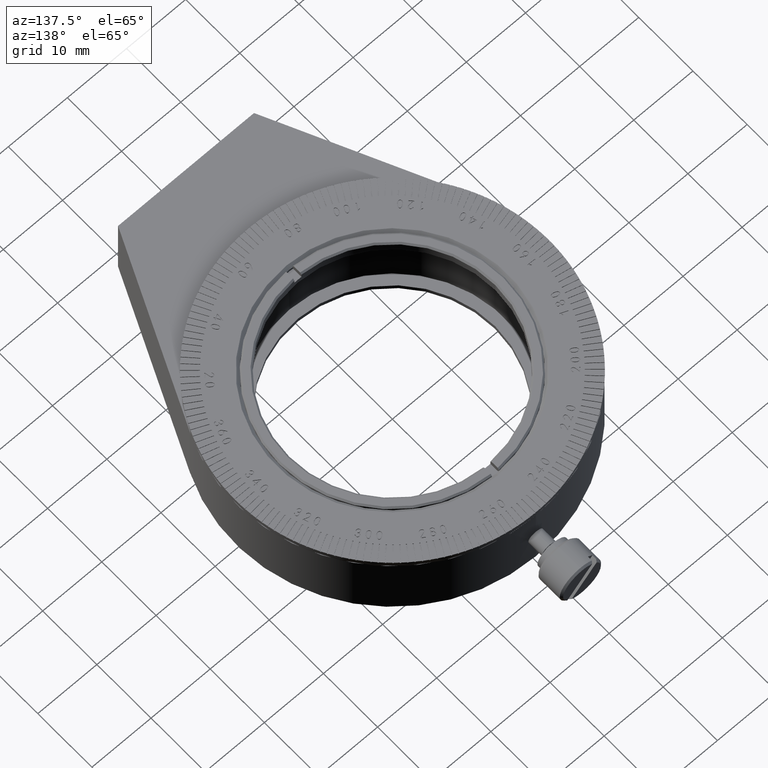
[diagram: clean part render]
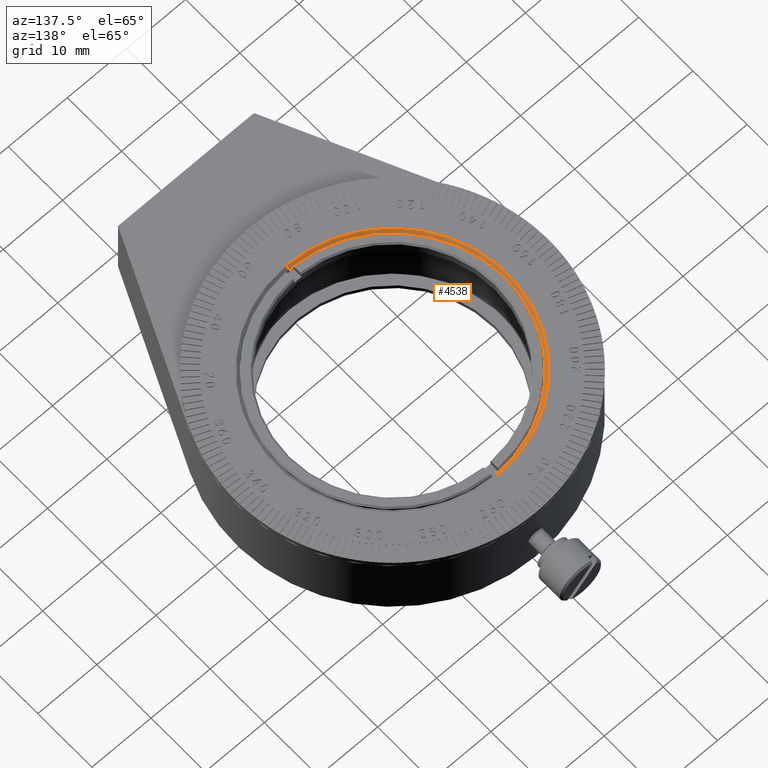
[diagram: same view with one face highlighted and labeled with its STEP entity id]
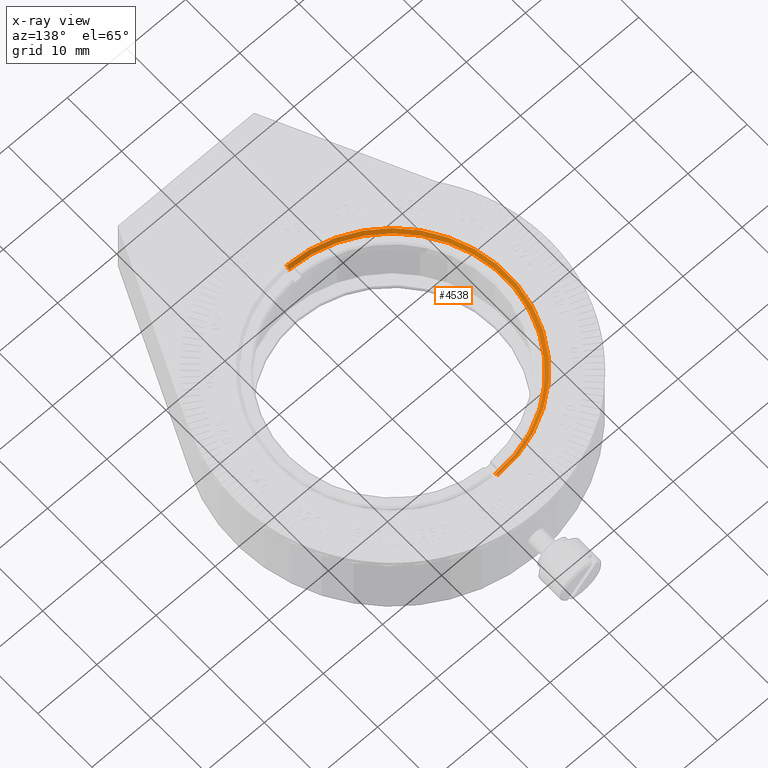
[diagram: x-ray of the same camera — body ghosted, the highlighted face saturated]
A machine part, auxiliary view. The second image highlights one B-rep face of the part: STEP entity #4538.
The next image is the same camera in x-ray: the body ghosted, the highlighted face saturated — about 0% of this face is hidden behind the body in this view.
In plain terms, the highlighted conical surface has half-angle 45 deg.
Its self-contained STEP definition (entity closure, byte-faithful):
#590 = EDGE_CURVE ( 'NONE', #22098, #11931, #48425, .T. ) ;
#831 = DIRECTION ( 'NONE',  ( 0.000000000000000000, -1.000000000000000000, 8.873265861773942406E-17 ) ) ;
#836 = VECTOR ( 'NONE', #46918, 1000.000000000000000 ) ;
#1762 = CARTESIAN_POINT ( 'NONE',  ( 3.028128947738332978E-15, 19.05000000000000426, 12.49999999999998757 ) ) ;
#3082 = DIRECTION ( 'NONE',  ( 0.000000000000000000, -1.000000000000000000, 8.873265861773942406E-17 ) ) ;
#4538 = ADVANCED_FACE ( 'NONE', ( #7821 ), #25960, .F. ) ;
#4668 = EDGE_CURVE ( 'NONE', #11294, #22098, #26980, .T. ) ;
#5459 = EDGE_CURVE ( 'NONE', #11294, #16571, #46296, .T. ) ;
#5872 = DIRECTION ( 'NONE',  ( -4.208420278381578421E-17, -7.811788899748226735E-17, -1.000000000000000000 ) ) ;
#7821 = FACE_OUTER_BOUND ( 'NONE', #36184, .T. ) ;
#7839 = AXIS2_PLACEMENT_3D ( 'NONE', #29827, #50326, #26035 ) ;
#7885 = CIRCLE ( 'NONE', #40085, 19.55000000000001492 ) ;
#8447 = CARTESIAN_POINT ( 'NONE',  ( 3.261546230321480742E-15, 19.55000000000001492, 13.00000000000000178 ) ) ;
#11294 = VERTEX_POINT ( 'NONE', #1762 ) ;
#11931 = VERTEX_POINT ( 'NONE', #38910 ) ;
#16571 = VERTEX_POINT ( 'NONE', #33635 ) ;
#19456 = CARTESIAN_POINT ( 'NONE',  ( 8.673617379884035472E-16, 0.000000000000000000, 13.00000000000000355 ) ) ;
#20291 = VECTOR ( 'NONE', #54388, 1000.000000000000000 ) ;
#20629 = EDGE_CURVE ( 'NONE', #11931, #16571, #7885, .T. ) ;
#22098 = VERTEX_POINT ( 'NONE', #41122 ) ;
#22955 = AXIS2_PLACEMENT_3D ( 'NONE', #27062, #46288, #3082 ) ;
#25960 = CONICAL_SURFACE ( 'NONE', #22955, 19.55000000000001492, 0.7853981633974447263 ) ;
#26035 = DIRECTION ( 'NONE',  ( -0.4742808728983839983, -0.8803735875199499850, 9.106159978880874930E-17 ) ) ;
#26980 = CIRCLE ( 'NONE', #7839, 19.05000000000000426 ) ;
#27062 = CARTESIAN_POINT ( 'NONE',  ( 8.673617379884035472E-16, 0.000000000000000000, 13.00000000000000355 ) ) ;
#29827 = CARTESIAN_POINT ( 'NONE',  ( 6.951767953626228640E-16, -9.757941448684247744E-16, 12.49999999999998934 ) ) ;
#30115 = CARTESIAN_POINT ( 'NONE',  ( 8.673617379884035472E-16, -19.55000000000001492, 13.00000000000000533 ) ) ;
#33635 = CARTESIAN_POINT ( 'NONE',  ( 3.261546230321480742E-15, 19.55000000000001492, 13.00000000000000178 ) ) ;
#36184 = EDGE_LOOP ( 'NONE', ( #49785, #49143, #50430, #39294 ) ) ;
#38910 = CARTESIAN_POINT ( 'NONE',  ( 8.673617379884035472E-16, -19.55000000000001492, 13.00000000000000533 ) ) ;
#39294 = ORIENTED_EDGE ( 'NONE', *, *, #590, .F. ) ;
#40085 = AXIS2_PLACEMENT_3D ( 'NONE', #19456, #5872, #831 ) ;
#41122 = CARTESIAN_POINT ( 'NONE',  ( 6.951767953626246389E-16, -19.05000000000000426, 12.49999999999999112 ) ) ;
#46288 = DIRECTION ( 'NONE',  ( 4.208420278381578421E-17, 7.811788899748226735E-17, 1.000000000000000000 ) ) ;
#46296 = LINE ( 'NONE', #8447, #836 ) ;
#46918 = DIRECTION ( 'NONE',  ( 1.163536307928150405E-16, 0.7071067811865450192, 0.7071067811865500152 ) ) ;
#48425 = LINE ( 'NONE', #30115, #20291 ) ;
#49143 = ORIENTED_EDGE ( 'NONE', *, *, #5459, .T. ) ;
#49785 = ORIENTED_EDGE ( 'NONE', *, *, #4668, .F. ) ;
#50326 = DIRECTION ( 'NONE',  ( -2.801265104111234548E-31, 1.224646799147355179E-16, 1.000000000000000000 ) ) ;
#50430 = ORIENTED_EDGE ( 'NONE', *, *, #20629, .F. ) ;
#54388 = DIRECTION ( 'NONE',  ( 2.975802516926602003E-17, -0.7071067811865450192, 0.7071067811865500152 ) ) ;